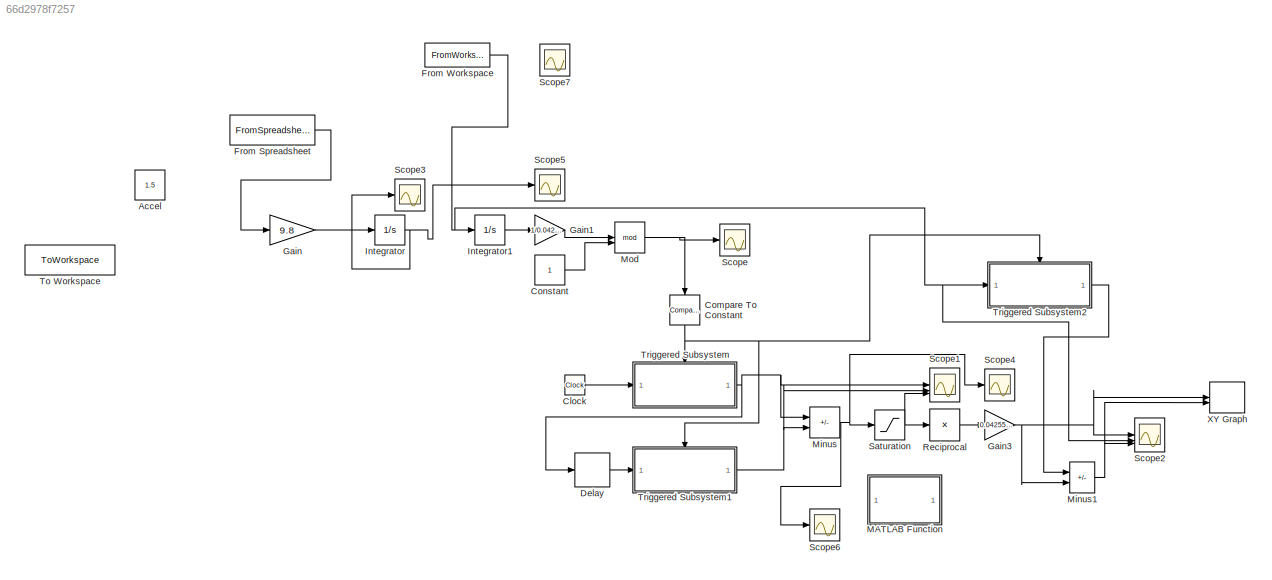
MODEL slx_66d2978f7257
KIND model
CONFIG AbsTol = auto
CONFIG EnableMultiTasking = off
CONFIG FixedStep = auto
CONFIG MaxStep = auto
CONFIG MinStep = auto
CONFIG RelTol = 1e-3
CONFIG SampleTimeConstraint = Unconstrained
CONFIG SolverName = VariableStepAuto
CONFIG StartTime = 0.0
CONFIG StopTime = 10
BLOCK [Constant] Accel
  SampleTime = 0.001
  Value = 1.5
BLOCK [Clock] Clock
BLOCK [Reference] Compare To Constant  REF=simulink/Logic and Bit
Operations/Compare
To Constant
  NameLocation = left
  SourceBlock = simulink/Logic and Bit\nOperations/Compare\nTo Constant
  SourceType = Compare To Constant
BLOCK [Constant] Constant
BLOCK [Delay] Delay
  DelayLength = 1
  InputPortMap = u0
BLOCK [FromSpreadsheet] From Spreadsheet
  FileName = <userpath>/Downloads/Formula SAE/AccelerationCSV.xlsx
  Range = A1:B76416
  SheetName = AccelerationCSV
BLOCK [FromWorkspace] From Workspace
  SampleTime = 0.002
  VariableName = data_FL
BLOCK [Gain] Gain
  Gain = 9.8
BLOCK [Gain] Gain1
  Gain = 1/0.0425581
BLOCK [Gain] Gain3
  Gain = 0.0425581
BLOCK [Integrator] Integrator
BLOCK [Integrator] Integrator1
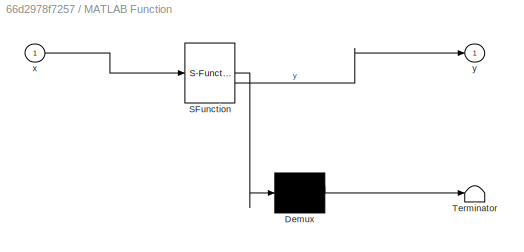
BLOCK [SubSystem] MATLAB Function
  ErrorFcn = Stateflow.Translate.translate
  PermitHierarchicalResolution = ExplicitOnly
  SFBlockType = MATLAB Function
  TreatAsAtomicUnit = on
BLOCK [Demux] MATLAB Function/ Demux 
  Outputs = 1
BLOCK [S-Function] MATLAB Function/ SFunction 
  EnableBusSupport = on
  FunctionName = sf_sfun
  PortCounts = [1 2]
  SFcnIsStateOwnerBlock = off
  SFunctionDeploymentMode = off
  Tag = Stateflow S-Function 2
BLOCK [Terminator] MATLAB Function/ Terminator 
BLOCK [Inport] MATLAB Function/x
BLOCK [Outport] MATLAB Function/y
BLOCK [Sum] Minus
  IconShape = rectangular
  Inputs = +-
BLOCK [Sum] Minus1
  IconShape = rectangular
  Inputs = +-
BLOCK [Math] Mod
  Operator = mod
BLOCK [Product] Reciprocal
  Inputs = /
BLOCK [Saturate] Saturation
  LowerLimit = 1e-6
  UpperLimit = inf
BLOCK [Scope] Scope
  Floating = off
  NumInputPorts = 1
  ScopeSpecificationString = Simulink.scopes.TimeScopeBlockCfg('CurrentConfiguration', extmgr.ConfigurationSet(extmgr.Configuration('Core','General UI',true),extmgr.Configuration('Core','Source UI',true),extmgr.Configuration('Sources','WiredSimulink',true),extmgr.Configuration('Visuals','Time Domain',true,'SerializedDisplays',{struct('MinYLimReal','0.53886','MaxYLimReal','0.96578','YLabelReal','','MinYLimMag','0.53886','MaxYL...<+1482ch>
BLOCK [Scope] Scope1
  Floating = off
  NumInputPorts = 3
  ScopeSpecificationString = Simulink.scopes.TimeScopeBlockCfg('CurrentConfiguration', extmgr.ConfigurationSet(extmgr.Configuration('Core','General UI',true),extmgr.Configuration('Core','Source UI',true),extmgr.Configuration('Sources','WiredSimulink',true,'DataLoggingVariableName','ScopeData1'),extmgr.Configuration('Visuals','Time Domain',true,'SerializedDisplays',{struct('MinYLimReal','66.47133','MaxYLimReal','66.94149','YLa...<+1558ch>
BLOCK [Scope] Scope2
  Floating = off
  NumInputPorts = 3
  ScopeSpecificationString = Simulink.scopes.TimeScopeBlockCfg('CurrentConfiguration', extmgr.ConfigurationSet(extmgr.Configuration('Core','General UI',true),extmgr.Configuration('Core','Source UI',true),extmgr.Configuration('Sources','WiredSimulink',true,'DataLoggingVariableName','ScopeData2'),extmgr.Configuration('Visuals','Time Domain',true,'SerializedDisplays',{struct('MinYLimReal','-53197.625','MaxYLimReal','53197.625','...<+1569ch>
BLOCK [Scope] Scope3
  Floating = off
  NumInputPorts = 1
  ScopeSpecificationString = Simulink.scopes.TimeScopeBlockCfg('CurrentConfiguration', extmgr.ConfigurationSet(extmgr.Configuration('Core','General UI',true),extmgr.Configuration('Core','Source UI',true),extmgr.Configuration('Sources','WiredSimulink',true,'DataLoggingVariableName','ScopeData1'),extmgr.Configuration('Visuals','Time Domain',true,'SerializedDisplays',{struct('MinYLimReal','-15.7652','MaxYLimReal','27.79279','YLa...<+1506ch>
BLOCK [Scope] Scope4
  Floating = off
  NumInputPorts = 1
  ScopeSpecificationString = Simulink.scopes.TimeScopeBlockCfg('CurrentConfiguration', extmgr.ConfigurationSet(extmgr.Configuration('Core','General UI',true),extmgr.Configuration('Core','Source UI',true),extmgr.Configuration('Sources','WiredSimulink',true,'DataLoggingVariableName','ScopeData2'),extmgr.Configuration('Visuals','Time Domain',true,'SerializedDisplays',{struct('MinYLimReal','-0.36468','MaxYLimReal','3.28215','YLab...<+1472ch>
BLOCK [Scope] Scope5
  Floating = off
  NumInputPorts = 1
  ScopeSpecificationString = Simulink.scopes.TimeScopeBlockCfg('CurrentConfiguration', extmgr.ConfigurationSet(extmgr.Configuration('Core','General UI',true),extmgr.Configuration('Core','Source UI',true),extmgr.Configuration('Sources','WiredSimulink',true,'DataLoggingVariableName','ScopeData1'),extmgr.Configuration('Visuals','Time Domain',true,'SerializedDisplays',{struct('MinYLimReal','-15.7652','MaxYLimReal','27.79279','YLa...<+1462ch>
BLOCK [Scope] Scope6
  Floating = off
  NumInputPorts = 1
  ScopeSpecificationString = Simulink.scopes.TimeScopeBlockCfg('CurrentConfiguration', extmgr.ConfigurationSet(extmgr.Configuration('Core','General UI',true),extmgr.Configuration('Core','Source UI',true),extmgr.Configuration('Sources','WiredSimulink',true,'DataLoggingVariableName','ScopeData2'),extmgr.Configuration('Visuals','Time Domain',true,'SerializedDisplays',{struct('MinYLimReal','-0.11649','MaxYLimReal','1.04844','YLab...<+1453ch>
BLOCK [Scope] Scope7
  Floating = off
  NumInputPorts = 1
  ScopeSpecificationString = Simulink.scopes.TimeScopeBlockCfg('CurrentConfiguration', extmgr.ConfigurationSet(extmgr.Configuration('Core','General UI',true),extmgr.Configuration('Core','Source UI',true),extmgr.Configuration('Sources','WiredSimulink',true,'DataLoggingVariableName','ScopeData1'),extmgr.Configuration('Visuals','Time Domain',true,'SerializedDisplays',{struct('MinYLimReal','-1.58049','MaxYLimReal','25.97238','YLa...<+1540ch>
BLOCK [ToWorkspace] To Workspace
  FixptAsFi = on
  MaxDataPoints = inf
  SampleTime = -1
  SaveFormat = Timeseries
  VariableName = simout
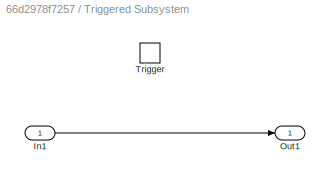
BLOCK [SubSystem] Triggered Subsystem
  TreatAsAtomicUnit = on
BLOCK [Inport] Triggered Subsystem/In1
BLOCK [Outport] Triggered Subsystem/Out1
BLOCK [TriggerPort] Triggered Subsystem/Trigger
  StatesWhenEnabling = held
  TriggerType = falling
  VariantControl = (inherit)
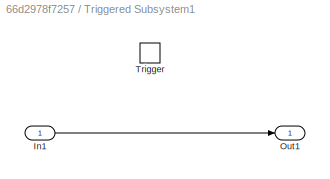
BLOCK [SubSystem] Triggered Subsystem1
  TreatAsAtomicUnit = on
BLOCK [Inport] Triggered Subsystem1/In1
BLOCK [Outport] Triggered Subsystem1/Out1
BLOCK [TriggerPort] Triggered Subsystem1/Trigger
  StatesWhenEnabling = held
  TriggerType = falling
  VariantControl = (inherit)
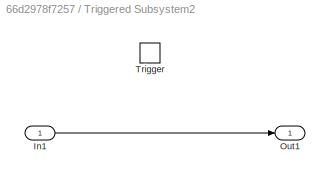
BLOCK [SubSystem] Triggered Subsystem2
  TreatAsAtomicUnit = on
BLOCK [Inport] Triggered Subsystem2/In1
BLOCK [Outport] Triggered Subsystem2/Out1
BLOCK [TriggerPort] Triggered Subsystem2/Trigger
  StatesWhenEnabling = held
  TriggerType = falling
  VariantControl = (inherit)
BLOCK [Record] XY Graph
  CompatibilityTag = XY
  FileSettingsInternal = {"entries":[{"content":{"excelSettings":{"content":{},"type":"Streamout.ExcelSettings"}},"type":"Streamout.FileSettingStorage","uuid":""}],"packageUris":["http:\/\/schema.mathworks.com\/mf0\/streamout_blocks\/R2020a"],"version":"1.0"}
  Layout = [1 1]
  SignalsInternal = {"entries":[{"content":{"signals":[{"content":{"blockPath":[],"dimensions":[1],"domain":"","lineColor":"#ff13a6","lineWidth":2,"port":1,"sid":[""],"signalID":1,"signalName":"Gain3"},"type":"RecordBlkView.Signal","uuid":""},{"content":{"blockPath":[],"dimensions":[1,1],"domain":"","lineColor":"#fe330a","lineWidth":2,"port":2,"sid":[""],"signalID":2,"signalName":"Minus1"},"type":"RecordBlkView.Signa...<+159ch>
  VisualizationBindings = {"xyplotplugin":{"info":[{"series":[],"subplotID":1}]}}
LINE Clock:1 -> Triggered Subsystem:1
NET Compare To Constant:1 -> Triggered Subsystem1:trigger, Triggered Subsystem2:trigger, Triggered Subsystem:trigger
LINE Constant:1 -> Mod:2
LINE Delay:1 -> Triggered Subsystem1:1
LINE From Spreadsheet:1 -> Gain:1
NET From Workspace:1 -> Integrator1:1, Scope2:2, Triggered Subsystem2:1
LINE Gain1:1 -> Mod:1
NET Gain3:1 -> Minus1:2, Scope2:1, XY Graph:1
LINE Gain:1 -> Integrator:1
LINE Integrator1:1 -> Gain1:1
NET Integrator:1 -> Scope3:1, Scope5:1
NET Minus1:1 -> Scope2:3, XY Graph:2
NET Minus:1 -> Saturation:1, Scope4:1, Scope6:1
NET Mod:1 -> Compare To Constant:1, Scope:1
LINE Reciprocal:1 -> Gain3:1
NET Saturation:1 -> Reciprocal:1, Scope1:3
LINE Triggered Subsystem/In1:1 -> Triggered Subsystem/Out1:1
LINE Triggered Subsystem1/In1:1 -> Triggered Subsystem1/Out1:1
NET Triggered Subsystem1:1 -> Minus:2, Scope1:2
LINE Triggered Subsystem2/In1:1 -> Triggered Subsystem2/Out1:1
LINE Triggered Subsystem2:1 -> Minus1:1
NET Triggered Subsystem:1 -> Delay:1, Minus:1, Scope1:1
note: NET lines group one-source signal fan-out (src -> all destinations, sorted); 1:1 wires keep LINE
CHART MATLAB Function states=1 transitions=1
  STATE_LABEL 'eML_blk_kernel()'
  STATE_LABEL 'SCRIPT:\nfunction y = avoid_divide_by_zero(x)\n    threshold = 1e-6; % Small nonzero threshold\n    if abs(x) < threshold\n        y = sign(x) * threshold; % Preserve sign and avoid zero\n    else\n        y = x;\n    end\nend\n\n'
CHART  states=0 transitions=0
